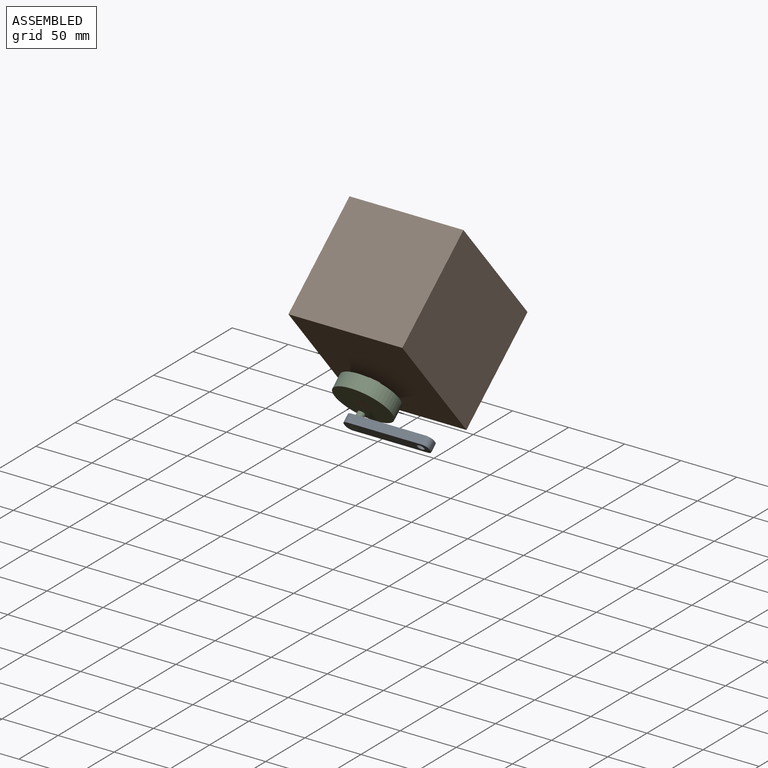
[diagram: assembled view]
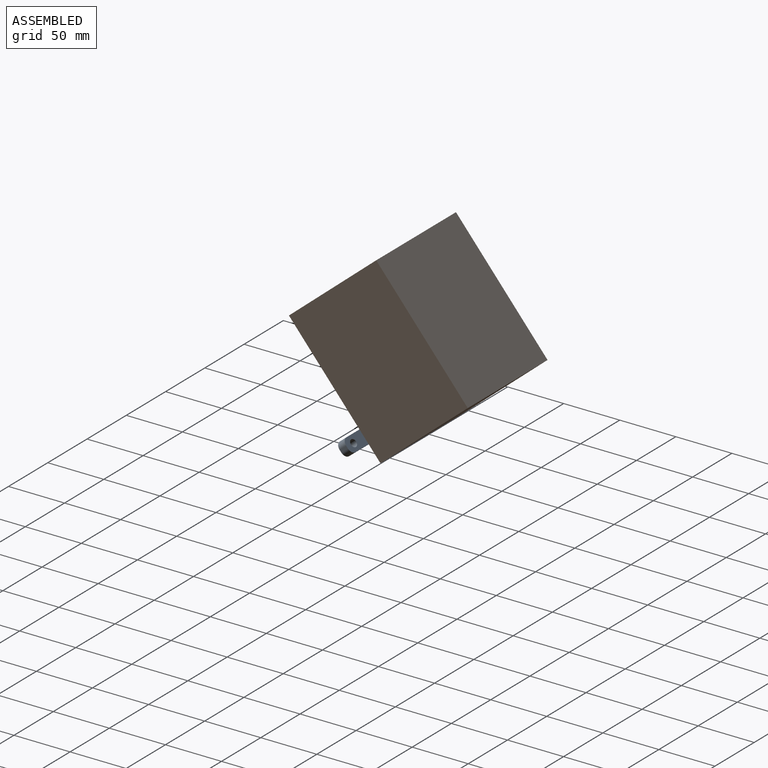
[diagram: assembled view, second angle]
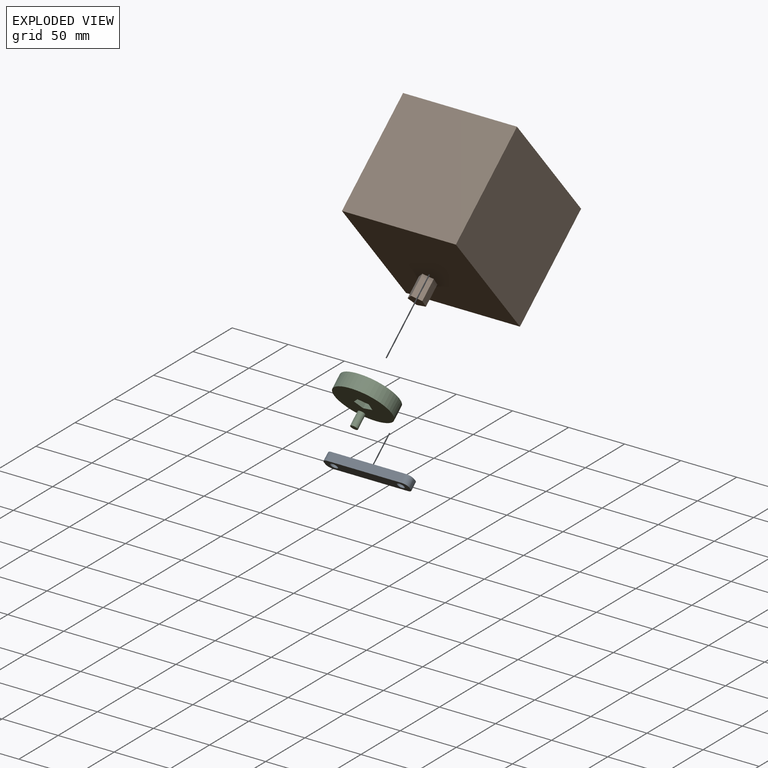
[diagram: exploded view]
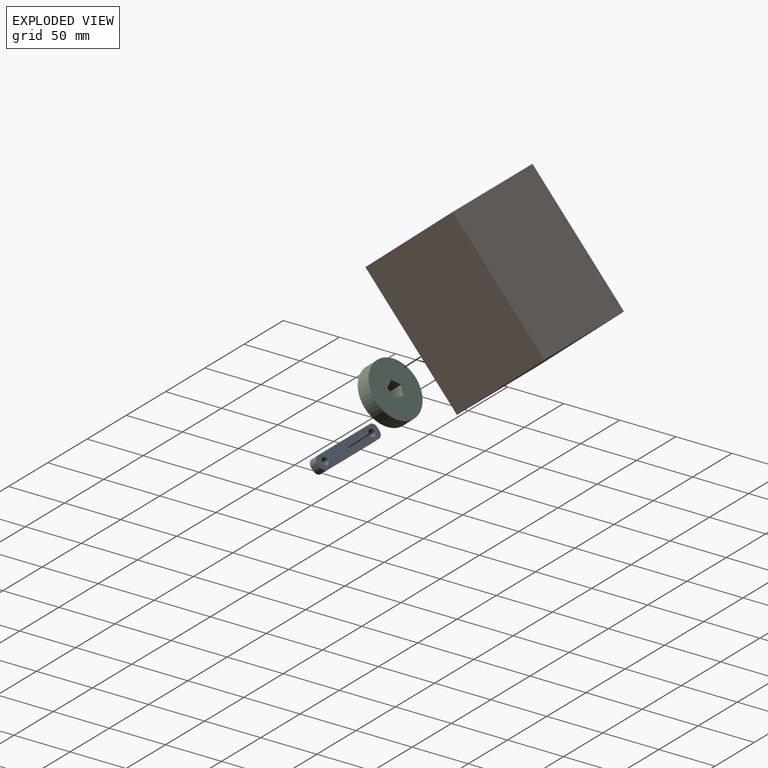
[diagram: exploded view, second angle]
ASSEMBLY  parts=3 mates=2
PART A: 12 faces, bbox 76.2x7.6x12.7 mm
  f0: plane 7.62x2.54mm, normal (-1,0,0), area 19.4mm2, adj f4,f5,f8,f11
  f1: plane 66.04x7.62mm, normal (0,0,-1), area 503.2mm2, adj f4,f5,f8,f9
  f2: plane 7.62x2.54mm, normal (1,0,0), area 19.4mm2, adj f4,f5,f9,f10
  f3: plane 66.04x7.62mm, normal (0,0,1), area 503.2mm2, adj f4,f5,f10,f11
  f4: plane 76.2x12.7mm, normal (0,-1,0), area 877.1mm2, adj f0,f1,f2,f3,f6,f7,f8,f9
  f5: plane 76.2x12.7mm, normal (0,1,0), area 877.1mm2, adj f0,f1,f2,f3,f6,f7,f8,f9
  f6: cylinder r=3.3mm len=7.62mm, axis (0,-1,0), area 158.1mm2, adj f4,f5
  f7: cylinder r=3.3mm len=7.62mm, axis (0,-1,0), area 158.1mm2, adj f4,f5
  f8: cylinder r=5.08mm len=7.62mm, axis (0,-1,0), area 60.8mm2, adj f0,f1,f4,f5
  f9: cylinder r=5.08mm len=7.62mm, axis (0,1,0), area 60.8mm2, adj f1,f2,f4,f5
  f10: cylinder r=5.08mm len=7.62mm, axis (0,-1,0), area 60.8mm2, adj f2,f3,f4,f5
  f11: cylinder r=5.08mm len=7.62mm, axis (0,1,0), area 60.8mm2, adj f0,f3,f4,f5
PART B: 12 faces, bbox 101.6x120.7x127 mm
  f0: plane 127x101.6mm, normal (0,-1,0), area 12756.7mm2, adj f1,f2,f3,f4,f6,f7,f8,f9
  f1: plane 127x101.6mm, normal (-1,0,0), area 12903.2mm2, adj f0,f2,f4,f5
  f2: plane 101.6x101.6mm, normal (0,0,-1), area 10322.6mm2, adj f0,f1,f3,f5
  f3: plane 127x101.6mm, normal (1,0,0), area 12903.2mm2, adj f0,f2,f4,f5
  f4: plane 101.6x101.6mm, normal (0,0,1), area 10322.6mm2, adj f0,f1,f3,f5
  f5: plane 127x101.6mm, normal (0,1,0), area 12903.2mm2, adj f1,f2,f3,f4
  f6: plane 19.05x8.45mm, normal (0.4,0,0.92), area 175.8mm2, adj f0,f7,f10,f11
  f7: plane 19.05x6.89mm, normal (-0.75,0,0.67), area 175.8mm2, adj f0,f6,f8,f11
  f8: plane 19.05x7.97mm, normal (-0.86,0,-0.5), area 175.8mm2, adj f0,f7,f9,f11
  f9: plane 19.05x9.02mm, normal (0.21,0,-0.98), area 175.8mm2, adj f0,f8,f10,f11
  f10: plane 19.05x9.18mm, normal (1,0,-0.1), area 175.8mm2, adj f0,f6,f9,f11
  f11: plane 14.86x14.59mm, normal (0,-1,0), area 146.5mm2, adj f6,f7,f8,f9,f10
PART C: 10 faces, bbox 50.8x25.4x50.8 mm
  f0: plane 50.8x50.8mm, normal (0,-1,0), area 1848.7mm2, adj f2,f3,f4,f5,f6,f7,f8
  f1: plane 50.8x50.8mm, normal (0,1,0), area 1880.3mm2, adj f2,f3,f4,f5,f6,f7
  f2: cylinder r=25.4mm len=50.8mm, axis (0,1,0), area 2026.8mm2, adj f0,f1
  f3: plane 12.7x8.02mm, normal (0.87,0,0.49), area 117.2mm2, adj f0,f1,f4,f7
  f4: plane 12.7x9.04mm, normal (-0.2,0,0.98), area 117.2mm2, adj f0,f1,f3,f5
  f5: plane 12.7x9.17mm, normal (-0.99,0,0.11), area 117.2mm2, adj f0,f1,f4,f6
  f6: plane 12.7x8.41mm, normal (-0.41,0,-0.91), area 117.2mm2, adj f0,f1,f5,f7
  f7: plane 12.7x6.82mm, normal (0.74,0,-0.67), area 117.2mm2, adj f0,f1,f3,f6
  f8: cylinder r=3.17mm len=12.7mm, axis (0,1,0), area 253.4mm2, adj f0,f9
  f9: plane 6.35x6.35mm, normal (0,-1,0), area 31.7mm2, adj f8
PLACE A rot(axis=(1,0,0),40deg) t=(-35.84,-7.32,12.99)mm
PLACE B rot(axis=(1,0,0),40deg) t=(109.63,66.5,120.62)mm
PLACE C rot(axis=(1,0,0),40deg) t=(-22.16,33.33,-7.79)mm
MATE pin_slot B.f11 <-> C.f2  axis (0,-0.77,-0.64) through (-85.17,-4.12,17.08)mm
MATE pin_slot C.f8 <-> A.f7  axis (0,-0.77,-0.64) through (-94.47,-2.56,-4.54)mm
